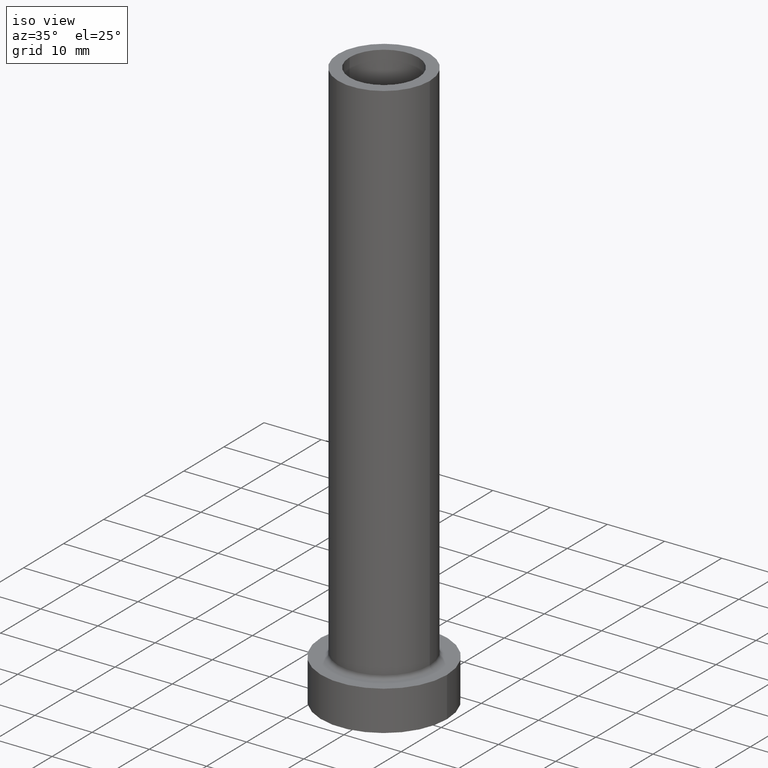
[diagram: clean part render]
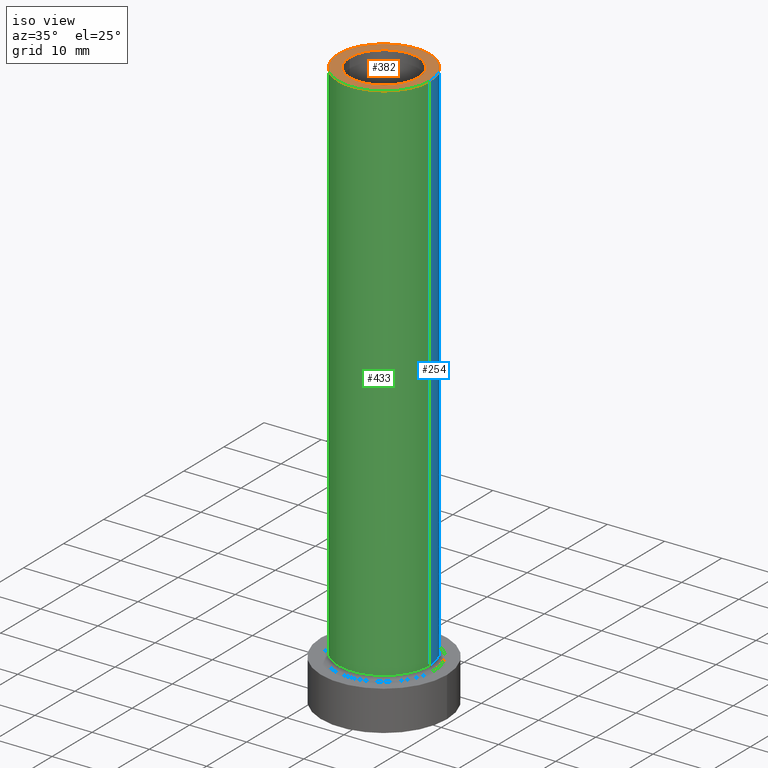
[diagram: same view with three faces highlighted in distinct colors, each labeled with its STEP entity id]
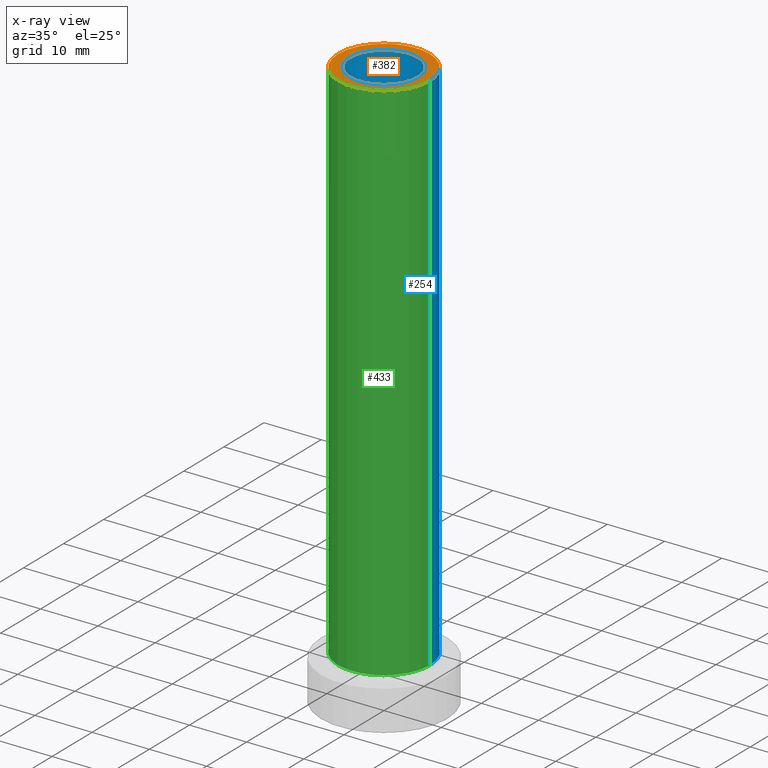
[diagram: x-ray of the same camera — body ghosted, the three highlighted faces saturated]
A machine part, iso view with three faces highlighted in distinct colors.
The next image is the same camera in x-ray (body ghosted, the three faces saturated) — at least one of them is partly hidden behind the body in this view.
Their STEP definitions:

[orange] entity #382 — the highlighted planar face has unit normal (0, 0, 1).
#19 = ORIENTED_EDGE ( 'NONE', *, *, #460, .F. ) ;
#23 = VERTEX_POINT ( 'NONE', #199 ) ;
#30 = AXIS2_PLACEMENT_3D ( 'NONE', #130, #278, #240 ) ;
#36 = PLANE ( 'NONE',  #183 ) ;
#37 = ORIENTED_EDGE ( 'NONE', *, *, #294, .T. ) ;
#42 = VERTEX_POINT ( 'NONE', #276 ) ;
#83 = EDGE_CURVE ( 'NONE', #42, #236, #362, .T. ) ;
#118 = AXIS2_PLACEMENT_3D ( 'NONE', #181, #145, #253 ) ;
#122 = EDGE_CURVE ( 'NONE', #197, #23, #320, .T. ) ;
#130 = CARTESIAN_POINT ( 'NONE',  ( 0.000000000000000000, 0.000000000000000000, 100.0000000000000000 ) ) ;
#136 = EDGE_LOOP ( 'NONE', ( #19, #381 ) ) ;
#143 = CIRCLE ( 'NONE', #235, 8.000000000000000000 ) ;
#145 = DIRECTION ( 'NONE',  ( 0.000000000000000000, 0.000000000000000000, 1.000000000000000000 ) ) ;
#181 = CARTESIAN_POINT ( 'NONE',  ( 0.000000000000000000, 0.000000000000000000, 100.0000000000000000 ) ) ;
#183 = AXIS2_PLACEMENT_3D ( 'NONE', #187, #298, #429 ) ;
#187 = CARTESIAN_POINT ( 'NONE',  ( 0.000000000000000000, 0.000000000000000000, 100.0000000000000000 ) ) ;
#197 = VERTEX_POINT ( 'NONE', #453 ) ;
#199 = CARTESIAN_POINT ( 'NONE',  ( -6.000000000000000888, 0.000000000000000000, 100.0000000000000000 ) ) ;
#216 = CARTESIAN_POINT ( 'NONE',  ( -8.000000000000000000, 0.000000000000000000, 100.0000000000000000 ) ) ;
#235 = AXIS2_PLACEMENT_3D ( 'NONE', #403, #330, #303 ) ;
#236 = VERTEX_POINT ( 'NONE', #216 ) ;
#240 = DIRECTION ( 'NONE',  ( 1.000000000000000000, 0.000000000000000000, 0.000000000000000000 ) ) ;
#253 = DIRECTION ( 'NONE',  ( 1.000000000000000000, 0.000000000000000000, 0.000000000000000000 ) ) ;
#256 = CARTESIAN_POINT ( 'NONE',  ( 0.000000000000000000, 0.000000000000000000, 100.0000000000000000 ) ) ;
#276 = CARTESIAN_POINT ( 'NONE',  ( 8.000000000000000000, 9.797174393178823685E-16, 100.0000000000000000 ) ) ;
#278 = DIRECTION ( 'NONE',  ( 0.000000000000000000, 0.000000000000000000, 1.000000000000000000 ) ) ;
#294 = EDGE_CURVE ( 'NONE', #236, #42, #143, .T. ) ;
#298 = DIRECTION ( 'NONE',  ( 0.000000000000000000, 0.000000000000000000, 1.000000000000000000 ) ) ;
#303 = DIRECTION ( 'NONE',  ( 1.000000000000000000, 0.000000000000000000, 0.000000000000000000 ) ) ;
#308 = ORIENTED_EDGE ( 'NONE', *, *, #83, .T. ) ;
#320 = CIRCLE ( 'NONE', #369, 6.000000000000000888 ) ;
#330 = DIRECTION ( 'NONE',  ( 0.000000000000000000, 0.000000000000000000, 1.000000000000000000 ) ) ;
#357 = DIRECTION ( 'NONE',  ( 1.000000000000000000, 0.000000000000000000, 0.000000000000000000 ) ) ;
#362 = CIRCLE ( 'NONE', #118, 8.000000000000000000 ) ;
#363 = FACE_OUTER_BOUND ( 'NONE', #432, .T. ) ;
#369 = AXIS2_PLACEMENT_3D ( 'NONE', #256, #458, #357 ) ;
#381 = ORIENTED_EDGE ( 'NONE', *, *, #122, .F. ) ;
#382 = ADVANCED_FACE ( 'NONE', ( #397, #363 ), #36, .T. ) ;
#397 = FACE_BOUND ( 'NONE', #136, .T. ) ;
#403 = CARTESIAN_POINT ( 'NONE',  ( 0.000000000000000000, 0.000000000000000000, 100.0000000000000000 ) ) ;
#426 = CIRCLE ( 'NONE', #30, 6.000000000000000888 ) ;
#429 = DIRECTION ( 'NONE',  ( 1.000000000000000000, 0.000000000000000000, -0.000000000000000000 ) ) ;
#432 = EDGE_LOOP ( 'NONE', ( #37, #308 ) ) ;
#453 = CARTESIAN_POINT ( 'NONE',  ( 6.000000000000000888, 7.347880794884119736E-16, 100.0000000000000000 ) ) ;
#458 = DIRECTION ( 'NONE',  ( 0.000000000000000000, 0.000000000000000000, 1.000000000000000000 ) ) ;
#460 = EDGE_CURVE ( 'NONE', #23, #197, #426, .T. ) ;

[blue] entity #254 — the highlighted cylindrical surface (partial cylindrical patch) has radius 8 mm, axis along (-0, -0, -1).
#12 = ORIENTED_EDGE ( 'NONE', *, *, #170, .T. ) ;
#42 = VERTEX_POINT ( 'NONE', #276 ) ;
#53 = ORIENTED_EDGE ( 'NONE', *, *, #125, .T. ) ;
#70 = EDGE_CURVE ( 'NONE', #236, #334, #442, .T. ) ;
#78 = CARTESIAN_POINT ( 'NONE',  ( 0.000000000000000000, 0.000000000000000000, 100.0000000000000000 ) ) ;
#83 = EDGE_CURVE ( 'NONE', #42, #236, #362, .T. ) ;
#118 = AXIS2_PLACEMENT_3D ( 'NONE', #181, #145, #253 ) ;
#121 = ORIENTED_EDGE ( 'NONE', *, *, #70, .F. ) ;
#123 = FACE_OUTER_BOUND ( 'NONE', #284, .T. ) ;
#125 = EDGE_CURVE ( 'NONE', #42, #336, #425, .T. ) ;
#129 = DIRECTION ( 'NONE',  ( -0.000000000000000000, -0.000000000000000000, -1.000000000000000000 ) ) ;
#142 = DIRECTION ( 'NONE',  ( 0.000000000000000000, 0.000000000000000000, 1.000000000000000000 ) ) ;
#145 = DIRECTION ( 'NONE',  ( 0.000000000000000000, 0.000000000000000000, 1.000000000000000000 ) ) ;
#153 = CARTESIAN_POINT ( 'NONE',  ( 8.000000000000000000, 9.797174393178823685E-16, 7.699999999999998401 ) ) ;
#156 = CARTESIAN_POINT ( 'NONE',  ( -8.000000000000000000, 0.000000000000000000, 7.699999999999998401 ) ) ;
#170 = EDGE_CURVE ( 'NONE', #336, #334, #229, .T. ) ;
#181 = CARTESIAN_POINT ( 'NONE',  ( 0.000000000000000000, 0.000000000000000000, 100.0000000000000000 ) ) ;
#189 = DIRECTION ( 'NONE',  ( -1.000000000000000000, 0.000000000000000000, 0.000000000000000000 ) ) ;
#216 = CARTESIAN_POINT ( 'NONE',  ( -8.000000000000000000, 0.000000000000000000, 100.0000000000000000 ) ) ;
#229 = CIRCLE ( 'NONE', #378, 8.000000000000000000 ) ;
#234 = ORIENTED_EDGE ( 'NONE', *, *, #83, .F. ) ;
#236 = VERTEX_POINT ( 'NONE', #216 ) ;
#253 = DIRECTION ( 'NONE',  ( 1.000000000000000000, 0.000000000000000000, 0.000000000000000000 ) ) ;
#254 = ADVANCED_FACE ( 'NONE', ( #123 ), #400, .T. ) ;
#261 = DIRECTION ( 'NONE',  ( -0.000000000000000000, -0.000000000000000000, -1.000000000000000000 ) ) ;
#276 = CARTESIAN_POINT ( 'NONE',  ( 8.000000000000000000, 9.797174393178823685E-16, 100.0000000000000000 ) ) ;
#284 = EDGE_LOOP ( 'NONE', ( #234, #53, #12, #121 ) ) ;
#324 = CARTESIAN_POINT ( 'NONE',  ( 8.000000000000000000, 9.797174393178823685E-16, 100.0000000000000000 ) ) ;
#328 = CARTESIAN_POINT ( 'NONE',  ( 0.000000000000000000, 0.000000000000000000, 7.699999999999998401 ) ) ;
#334 = VERTEX_POINT ( 'NONE', #156 ) ;
#336 = VERTEX_POINT ( 'NONE', #153 ) ;
#362 = CIRCLE ( 'NONE', #118, 8.000000000000000000 ) ;
#378 = AXIS2_PLACEMENT_3D ( 'NONE', #328, #142, #385 ) ;
#385 = DIRECTION ( 'NONE',  ( 1.000000000000000000, 0.000000000000000000, 0.000000000000000000 ) ) ;
#387 = DIRECTION ( 'NONE',  ( -0.000000000000000000, -0.000000000000000000, -1.000000000000000000 ) ) ;
#400 = CYLINDRICAL_SURFACE ( 'NONE', #450, 8.000000000000000000 ) ;
#413 = CARTESIAN_POINT ( 'NONE',  ( -8.000000000000000000, 0.000000000000000000, 100.0000000000000000 ) ) ;
#423 = VECTOR ( 'NONE', #387, 1000.000000000000000 ) ;
#425 = LINE ( 'NONE', #324, #423 ) ;
#442 = LINE ( 'NONE', #413, #454 ) ;
#450 = AXIS2_PLACEMENT_3D ( 'NONE', #78, #261, #189 ) ;
#454 = VECTOR ( 'NONE', #129, 1000.000000000000000 ) ;

[green] entity #433 — the highlighted cylindrical surface (partial cylindrical patch) has radius 8 mm, axis along (-0, -0, -1).
#16 = CARTESIAN_POINT ( 'NONE',  ( 0.000000000000000000, 0.000000000000000000, 100.0000000000000000 ) ) ;
#31 = CIRCLE ( 'NONE', #175, 8.000000000000000000 ) ;
#42 = VERTEX_POINT ( 'NONE', #276 ) ;
#46 = DIRECTION ( 'NONE',  ( -1.000000000000000000, 0.000000000000000000, 0.000000000000000000 ) ) ;
#70 = EDGE_CURVE ( 'NONE', #236, #334, #442, .T. ) ;
#80 = AXIS2_PLACEMENT_3D ( 'NONE', #16, #309, #46 ) ;
#114 = DIRECTION ( 'NONE',  ( 1.000000000000000000, 0.000000000000000000, 0.000000000000000000 ) ) ;
#115 = CARTESIAN_POINT ( 'NONE',  ( 0.000000000000000000, 0.000000000000000000, 7.699999999999998401 ) ) ;
#125 = EDGE_CURVE ( 'NONE', #42, #336, #425, .T. ) ;
#129 = DIRECTION ( 'NONE',  ( -0.000000000000000000, -0.000000000000000000, -1.000000000000000000 ) ) ;
#143 = CIRCLE ( 'NONE', #235, 8.000000000000000000 ) ;
#153 = CARTESIAN_POINT ( 'NONE',  ( 8.000000000000000000, 9.797174393178823685E-16, 7.699999999999998401 ) ) ;
#156 = CARTESIAN_POINT ( 'NONE',  ( -8.000000000000000000, 0.000000000000000000, 7.699999999999998401 ) ) ;
#160 = EDGE_LOOP ( 'NONE', ( #243, #401, #398, #372 ) ) ;
#175 = AXIS2_PLACEMENT_3D ( 'NONE', #115, #332, #114 ) ;
#196 = FACE_OUTER_BOUND ( 'NONE', #160, .T. ) ;
#200 = CYLINDRICAL_SURFACE ( 'NONE', #80, 8.000000000000000000 ) ;
#216 = CARTESIAN_POINT ( 'NONE',  ( -8.000000000000000000, 0.000000000000000000, 100.0000000000000000 ) ) ;
#235 = AXIS2_PLACEMENT_3D ( 'NONE', #403, #330, #303 ) ;
#236 = VERTEX_POINT ( 'NONE', #216 ) ;
#243 = ORIENTED_EDGE ( 'NONE', *, *, #125, .F. ) ;
#255 = EDGE_CURVE ( 'NONE', #334, #336, #31, .T. ) ;
#276 = CARTESIAN_POINT ( 'NONE',  ( 8.000000000000000000, 9.797174393178823685E-16, 100.0000000000000000 ) ) ;
#294 = EDGE_CURVE ( 'NONE', #236, #42, #143, .T. ) ;
#303 = DIRECTION ( 'NONE',  ( 1.000000000000000000, 0.000000000000000000, 0.000000000000000000 ) ) ;
#309 = DIRECTION ( 'NONE',  ( -0.000000000000000000, -0.000000000000000000, -1.000000000000000000 ) ) ;
#324 = CARTESIAN_POINT ( 'NONE',  ( 8.000000000000000000, 9.797174393178823685E-16, 100.0000000000000000 ) ) ;
#330 = DIRECTION ( 'NONE',  ( 0.000000000000000000, 0.000000000000000000, 1.000000000000000000 ) ) ;
#332 = DIRECTION ( 'NONE',  ( 0.000000000000000000, 0.000000000000000000, 1.000000000000000000 ) ) ;
#334 = VERTEX_POINT ( 'NONE', #156 ) ;
#336 = VERTEX_POINT ( 'NONE', #153 ) ;
#372 = ORIENTED_EDGE ( 'NONE', *, *, #255, .T. ) ;
#387 = DIRECTION ( 'NONE',  ( -0.000000000000000000, -0.000000000000000000, -1.000000000000000000 ) ) ;
#398 = ORIENTED_EDGE ( 'NONE', *, *, #70, .T. ) ;
#401 = ORIENTED_EDGE ( 'NONE', *, *, #294, .F. ) ;
#403 = CARTESIAN_POINT ( 'NONE',  ( 0.000000000000000000, 0.000000000000000000, 100.0000000000000000 ) ) ;
#413 = CARTESIAN_POINT ( 'NONE',  ( -8.000000000000000000, 0.000000000000000000, 100.0000000000000000 ) ) ;
#423 = VECTOR ( 'NONE', #387, 1000.000000000000000 ) ;
#425 = LINE ( 'NONE', #324, #423 ) ;
#433 = ADVANCED_FACE ( 'NONE', ( #196 ), #200, .T. ) ;
#442 = LINE ( 'NONE', #413, #454 ) ;
#454 = VECTOR ( 'NONE', #129, 1000.000000000000000 ) ;